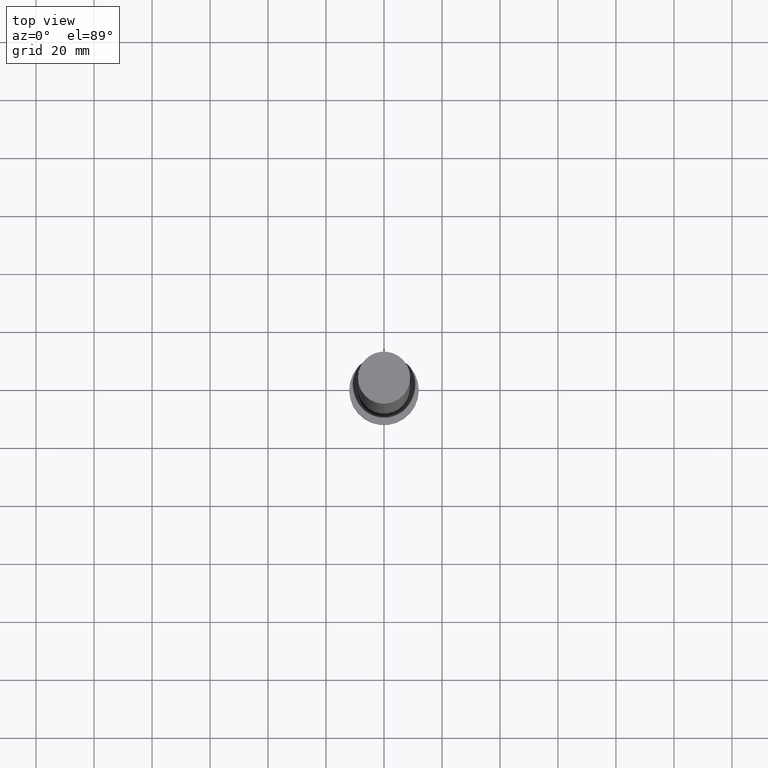
[diagram: clean part render]
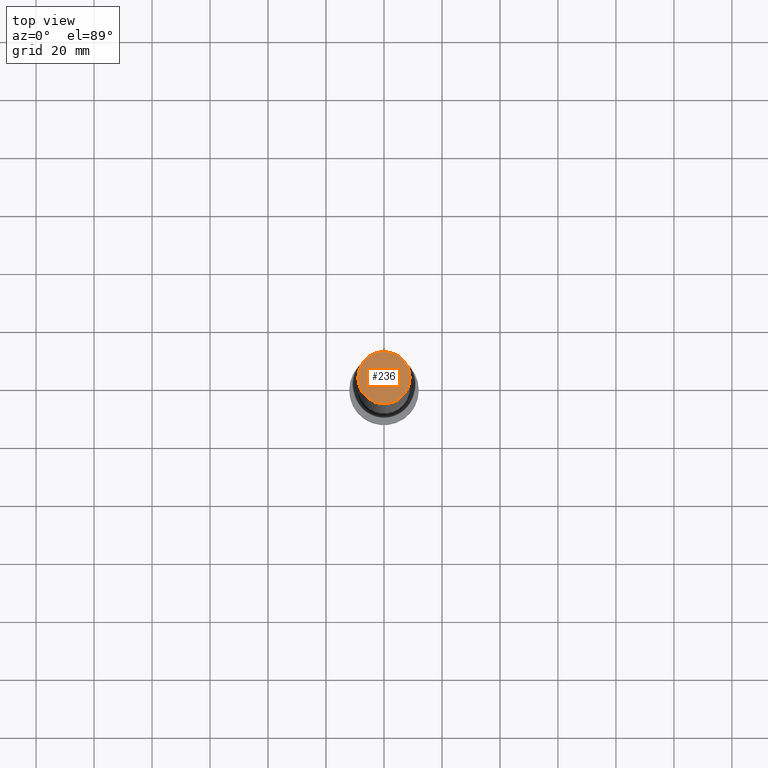
[diagram: same view with one face highlighted and labeled with its STEP entity id]
A machine part, top view. The second image highlights one B-rep face of the part: STEP entity #236.
In plain terms, the highlighted planar face has unit normal (0, 0, 1).
Its self-contained STEP definition (entity closure, byte-faithful):
#25 = CIRCLE ( 'NONE', #52, 9.000000000000001776 ) ;
#35 = DIRECTION ( 'NONE',  ( 1.000000000000000000, 0.000000000000000000, 0.000000000000000000 ) ) ;
#40 = CARTESIAN_POINT ( 'NONE',  ( 0.000000000000000000, 0.000000000000000000, 250.0000000000000000 ) ) ;
#51 = EDGE_CURVE ( 'NONE', #231, #215, #168, .T. ) ;
#52 = AXIS2_PLACEMENT_3D ( 'NONE', #178, #245, #201 ) ;
#61 = FACE_OUTER_BOUND ( 'NONE', #169, .T. ) ;
#72 = ORIENTED_EDGE ( 'NONE', *, *, #51, .T. ) ;
#78 = DIRECTION ( 'NONE',  ( 0.000000000000000000, 0.000000000000000000, 1.000000000000000000 ) ) ;
#123 = PLANE ( 'NONE',  #212 ) ;
#141 = DIRECTION ( 'NONE',  ( 1.000000000000000000, 0.000000000000000000, -0.000000000000000000 ) ) ;
#155 = EDGE_CURVE ( 'NONE', #215, #231, #25, .T. ) ;
#161 = CARTESIAN_POINT ( 'NONE',  ( -9.000000000000001776, 0.000000000000000000, 250.0000000000000000 ) ) ;
#168 = CIRCLE ( 'NONE', #234, 9.000000000000001776 ) ;
#169 = EDGE_LOOP ( 'NONE', ( #194, #72 ) ) ;
#178 = CARTESIAN_POINT ( 'NONE',  ( 0.000000000000000000, 0.000000000000000000, 250.0000000000000000 ) ) ;
#191 = DIRECTION ( 'NONE',  ( 0.000000000000000000, 0.000000000000000000, 1.000000000000000000 ) ) ;
#194 = ORIENTED_EDGE ( 'NONE', *, *, #155, .T. ) ;
#201 = DIRECTION ( 'NONE',  ( 1.000000000000000000, 0.000000000000000000, 0.000000000000000000 ) ) ;
#212 = AXIS2_PLACEMENT_3D ( 'NONE', #40, #78, #141 ) ;
#213 = CARTESIAN_POINT ( 'NONE',  ( 0.000000000000000000, 0.000000000000000000, 250.0000000000000000 ) ) ;
#215 = VERTEX_POINT ( 'NONE', #161 ) ;
#221 = CARTESIAN_POINT ( 'NONE',  ( 9.000000000000001776, 1.102182119232617911E-15, 250.0000000000000000 ) ) ;
#231 = VERTEX_POINT ( 'NONE', #221 ) ;
#234 = AXIS2_PLACEMENT_3D ( 'NONE', #213, #191, #35 ) ;
#236 = ADVANCED_FACE ( 'NONE', ( #61 ), #123, .T. ) ;
#245 = DIRECTION ( 'NONE',  ( 0.000000000000000000, 0.000000000000000000, 1.000000000000000000 ) ) ;